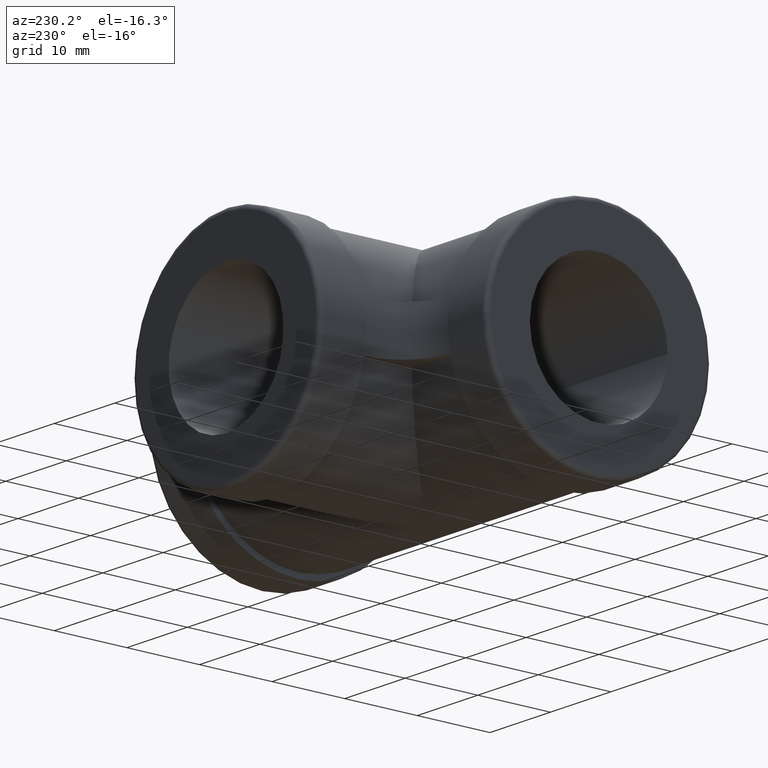
[diagram: clean part render]
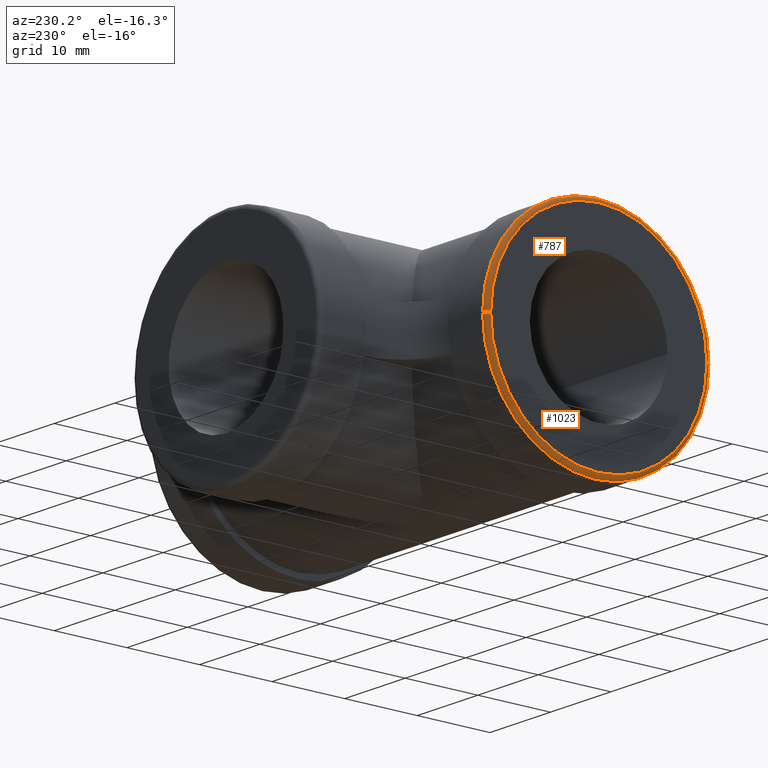
[diagram: same view with one multi-face feature highlighted, each face labeled with its STEP entity id]
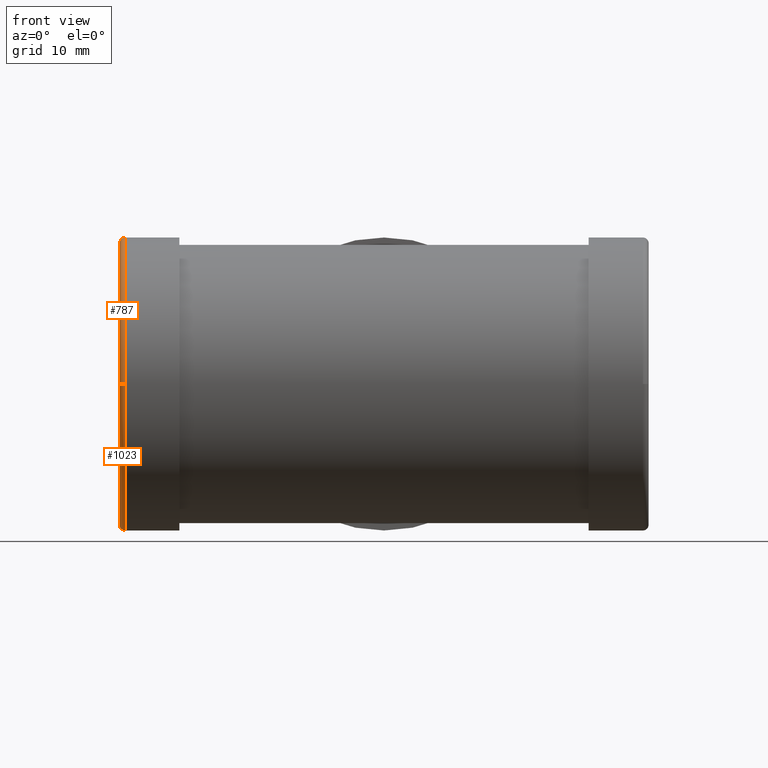
[diagram: same view with one multi-face feature highlighted, each face labeled with its STEP entity id]
A machine part, auxiliary view. The highlighted faces form ONE feature: a constant-radius fillet chain: 2 tangent blend faces with common blend radius 0.6048 mm. The faces share edges in the B-rep.
A second angle (front view) of the same feature is appended — it is thin or edge-on in the first view.
Their STEP definitions:
[1] entity #1023 (Torus):
#22 = EDGE_CURVE ( 'NONE', #100, #212, #1093, .T. ) ;
#32 = EDGE_LOOP ( 'NONE', ( #395, #788, #800, #543, #1024 ) ) ;
#86 = AXIS2_PLACEMENT_3D ( 'NONE', #986, #1188, #283 ) ;
#87 = CARTESIAN_POINT ( 'NONE',  ( -27.99999999999984368, 14.89523809523838871, 1.861171552132751273E-15 ) ) ;
#100 = VERTEX_POINT ( 'NONE', #956 ) ;
#129 = EDGE_CURVE ( 'NONE', #212, #885, #475, .T. ) ;
#156 = DIRECTION ( 'NONE',  ( -1.282749433769087582E-30, -1.224646799147353207E-16, 1.000000000000000000 ) ) ;
#172 = DIRECTION ( 'NONE',  ( 0.000000000000000000, -1.000000000000000000, -1.224646799147352961E-16 ) ) ;
#181 = DIRECTION ( 'NONE',  ( 1.000000000000000000, -1.047444401652940007E-14, -0.000000000000000000 ) ) ;
#186 = DIRECTION ( 'NONE',  ( -1.000000000000000000, 1.047444401652940007E-14, 0.000000000000000000 ) ) ;
#212 = VERTEX_POINT ( 'NONE', #87 ) ;
#237 = CIRCLE ( 'NONE', #86, 15.50000000000000000 ) ;
#283 = DIRECTION ( 'NONE',  ( -1.052025849947225024E-14, -1.000000000000000000, 0.000000000000000000 ) ) ;
#317 = CIRCLE ( 'NONE', #1193, 0.6047619047619030574 ) ;
#339 = TOROIDAL_SURFACE ( 'NONE', #592, 14.89523809523809561, 0.6047619047619047228 ) ;
#372 = DIRECTION ( 'NONE',  ( -1.047444401652940007E-14, -1.000000000000000000, 0.000000000000000000 ) ) ;
#374 = CARTESIAN_POINT ( 'NONE',  ( -27.39523809523825904, -15.49999999999971401, 0.000000000000000000 ) ) ;
#395 = ORIENTED_EDGE ( 'NONE', *, *, #22, .F. ) ;
#399 = CARTESIAN_POINT ( 'NONE',  ( -27.39523809523825193, -14.89523809523780962, 0.000000000000000000 ) ) ;
#404 = CIRCLE ( 'NONE', #1148, 15.50000000000000000 ) ;
#475 = CIRCLE ( 'NONE', #807, 14.89523809523809561 ) ;
#496 = CARTESIAN_POINT ( 'NONE',  ( -27.39523809523809916, 2.587590028916418985E-13, -15.50000000000000000 ) ) ;
#543 = ORIENTED_EDGE ( 'NONE', *, *, #816, .T. ) ;
#582 = DIRECTION ( 'NONE',  ( -1.000000000000000000, 1.047444401652940007E-14, 0.000000000000000000 ) ) ;
#586 = EDGE_CURVE ( 'NONE', #598, #619, #237, .T. ) ;
#592 = AXIS2_PLACEMENT_3D ( 'NONE', #965, #186, #372 ) ;
#598 = VERTEX_POINT ( 'NONE', #374 ) ;
#619 = VERTEX_POINT ( 'NONE', #496 ) ;
#625 = DIRECTION ( 'NONE',  ( -0.000000000000000000, 0.000000000000000000, -1.000000000000000000 ) ) ;
#654 = CARTESIAN_POINT ( 'NONE',  ( -27.39523809523794284, 14.89523809523838160, 1.824140565587105383E-15 ) ) ;
#743 = CARTESIAN_POINT ( 'NONE',  ( -28.00000000000015632, -14.89523809523780251, 0.000000000000000000 ) ) ;
#785 = CARTESIAN_POINT ( 'NONE',  ( -27.39523809523809916, 2.869498877480649627E-13, 0.000000000000000000 ) ) ;
#788 = ORIENTED_EDGE ( 'NONE', *, *, #1052, .F. ) ;
#800 = ORIENTED_EDGE ( 'NONE', *, *, #586, .F. ) ;
#801 = DIRECTION ( 'NONE',  ( -1.000000000000000000, 0.000000000000000000, 0.000000000000000000 ) ) ;
#807 = AXIS2_PLACEMENT_3D ( 'NONE', #1189, #582, #983 ) ;
#816 = EDGE_CURVE ( 'NONE', #598, #885, #317, .T. ) ;
#884 = FACE_OUTER_BOUND ( 'NONE', #32, .T. ) ;
#885 = VERTEX_POINT ( 'NONE', #743 ) ;
#956 = CARTESIAN_POINT ( 'NONE',  ( -27.39523809523793574, 15.50000000000028599, 1.898202538678397557E-15 ) ) ;
#965 = CARTESIAN_POINT ( 'NONE',  ( -27.39523809523809916, 2.869498877480649627E-13, 0.000000000000000000 ) ) ;
#983 = DIRECTION ( 'NONE',  ( -1.048154529922047699E-14, -1.000000000000000000, 0.000000000000000000 ) ) ;
#986 = CARTESIAN_POINT ( 'NONE',  ( -27.39523809523809916, 2.869498877480649627E-13, 0.000000000000000000 ) ) ;
#1023 = ADVANCED_FACE ( 'NONE', ( #884 ), #339, .T. ) ;
#1024 = ORIENTED_EDGE ( 'NONE', *, *, #129, .F. ) ;
#1052 = EDGE_CURVE ( 'NONE', #619, #100, #404, .T. ) ;
#1093 = CIRCLE ( 'NONE', #1263, 0.6047619047619048338 ) ;
#1148 = AXIS2_PLACEMENT_3D ( 'NONE', #785, #181, #1181 ) ;
#1181 = DIRECTION ( 'NONE',  ( -1.052025849947225024E-14, -1.000000000000000000, 0.000000000000000000 ) ) ;
#1188 = DIRECTION ( 'NONE',  ( 1.000000000000000000, -1.047444401652940007E-14, -0.000000000000000000 ) ) ;
#1189 = CARTESIAN_POINT ( 'NONE',  ( -28.00000000000000000, 2.932844324628232018E-13, 0.000000000000000000 ) ) ;
#1193 = AXIS2_PLACEMENT_3D ( 'NONE', #399, #625, #801 ) ;
#1263 = AXIS2_PLACEMENT_3D ( 'NONE', #654, #156, #172 ) ;
[2] entity #787 (Torus):
#22 = EDGE_CURVE ( 'NONE', #100, #212, #1093, .T. ) ;
#26 = CARTESIAN_POINT ( 'NONE',  ( -27.39523809523809916, 2.869498877480649627E-13, 0.000000000000000000 ) ) ;
#74 = CARTESIAN_POINT ( 'NONE',  ( -27.39523809523809916, 2.869498877480649627E-13, 0.000000000000000000 ) ) ;
#87 = CARTESIAN_POINT ( 'NONE',  ( -27.99999999999984368, 14.89523809523838871, 1.861171552132751273E-15 ) ) ;
#98 = DIRECTION ( 'NONE',  ( -1.000000000000000000, 1.047444401652940007E-14, 0.000000000000000000 ) ) ;
#100 = VERTEX_POINT ( 'NONE', #956 ) ;
#112 = ORIENTED_EDGE ( 'NONE', *, *, #1058, .F. ) ;
#122 = ORIENTED_EDGE ( 'NONE', *, *, #662, .F. ) ;
#152 = CIRCLE ( 'NONE', #992, 15.50000000000000000 ) ;
#156 = DIRECTION ( 'NONE',  ( -1.282749433769087582E-30, -1.224646799147353207E-16, 1.000000000000000000 ) ) ;
#166 = CARTESIAN_POINT ( 'NONE',  ( -27.39523809523809916, 2.869498877480649627E-13, 0.000000000000000000 ) ) ;
#167 = VERTEX_POINT ( 'NONE', #607 ) ;
#172 = DIRECTION ( 'NONE',  ( 0.000000000000000000, -1.000000000000000000, -1.224646799147352961E-16 ) ) ;
#183 = DIRECTION ( 'NONE',  ( -1.052025849947225024E-14, -1.000000000000000000, 0.000000000000000000 ) ) ;
#212 = VERTEX_POINT ( 'NONE', #87 ) ;
#265 = ORIENTED_EDGE ( 'NONE', *, *, #22, .T. ) ;
#271 = DIRECTION ( 'NONE',  ( -1.000000000000000000, 1.047444401652940007E-14, 0.000000000000000000 ) ) ;
#317 = CIRCLE ( 'NONE', #1193, 0.6047619047619030574 ) ;
#374 = CARTESIAN_POINT ( 'NONE',  ( -27.39523809523825904, -15.49999999999971401, 0.000000000000000000 ) ) ;
#385 = DIRECTION ( 'NONE',  ( -1.052025849947225024E-14, -1.000000000000000000, 0.000000000000000000 ) ) ;
#399 = CARTESIAN_POINT ( 'NONE',  ( -27.39523809523825193, -14.89523809523780962, 0.000000000000000000 ) ) ;
#467 = DIRECTION ( 'NONE',  ( 1.000000000000000000, -1.047444401652940007E-14, -0.000000000000000000 ) ) ;
#505 = ORIENTED_EDGE ( 'NONE', *, *, #816, .F. ) ;
#510 = CIRCLE ( 'NONE', #1257, 14.89523809523809561 ) ;
#524 = FACE_OUTER_BOUND ( 'NONE', #904, .T. ) ;
#583 = DIRECTION ( 'NONE',  ( -1.048154529922047699E-14, -1.000000000000000000, 0.000000000000000000 ) ) ;
#598 = VERTEX_POINT ( 'NONE', #374 ) ;
#607 = CARTESIAN_POINT ( 'NONE',  ( -27.39523809523809916, 2.568608003529634659E-13, 15.50000000000000000 ) ) ;
#625 = DIRECTION ( 'NONE',  ( -0.000000000000000000, 0.000000000000000000, -1.000000000000000000 ) ) ;
#654 = CARTESIAN_POINT ( 'NONE',  ( -27.39523809523794284, 14.89523809523838160, 1.824140565587105383E-15 ) ) ;
#662 = EDGE_CURVE ( 'NONE', #100, #167, #152, .T. ) ;
#687 = CARTESIAN_POINT ( 'NONE',  ( -28.00000000000000000, 2.932844324628232018E-13, 0.000000000000000000 ) ) ;
#735 = ORIENTED_EDGE ( 'NONE', *, *, #1009, .F. ) ;
#742 = TOROIDAL_SURFACE ( 'NONE', #1237, 14.89523809523809561, 0.6047619047619047228 ) ;
#743 = CARTESIAN_POINT ( 'NONE',  ( -28.00000000000015632, -14.89523809523780251, 0.000000000000000000 ) ) ;
#787 = ADVANCED_FACE ( 'NONE', ( #524 ), #742, .T. ) ;
#801 = DIRECTION ( 'NONE',  ( -1.000000000000000000, 0.000000000000000000, 0.000000000000000000 ) ) ;
#816 = EDGE_CURVE ( 'NONE', #598, #885, #317, .T. ) ;
#885 = VERTEX_POINT ( 'NONE', #743 ) ;
#904 = EDGE_LOOP ( 'NONE', ( #122, #265, #112, #505, #735 ) ) ;
#956 = CARTESIAN_POINT ( 'NONE',  ( -27.39523809523793574, 15.50000000000028599, 1.898202538678397557E-15 ) ) ;
#992 = AXIS2_PLACEMENT_3D ( 'NONE', #74, #467, #183 ) ;
#994 = CIRCLE ( 'NONE', #1171, 15.50000000000000000 ) ;
#1009 = EDGE_CURVE ( 'NONE', #167, #598, #994, .T. ) ;
#1058 = EDGE_CURVE ( 'NONE', #885, #212, #510, .T. ) ;
#1093 = CIRCLE ( 'NONE', #1263, 0.6047619047619048338 ) ;
#1098 = DIRECTION ( 'NONE',  ( 1.000000000000000000, -1.047444401652940007E-14, -0.000000000000000000 ) ) ;
#1171 = AXIS2_PLACEMENT_3D ( 'NONE', #166, #1098, #385 ) ;
#1193 = AXIS2_PLACEMENT_3D ( 'NONE', #399, #625, #801 ) ;
#1206 = DIRECTION ( 'NONE',  ( -1.047444401652940007E-14, -1.000000000000000000, 0.000000000000000000 ) ) ;
#1237 = AXIS2_PLACEMENT_3D ( 'NONE', #26, #98, #1206 ) ;
#1257 = AXIS2_PLACEMENT_3D ( 'NONE', #687, #271, #583 ) ;
#1263 = AXIS2_PLACEMENT_3D ( 'NONE', #654, #156, #172 ) ;